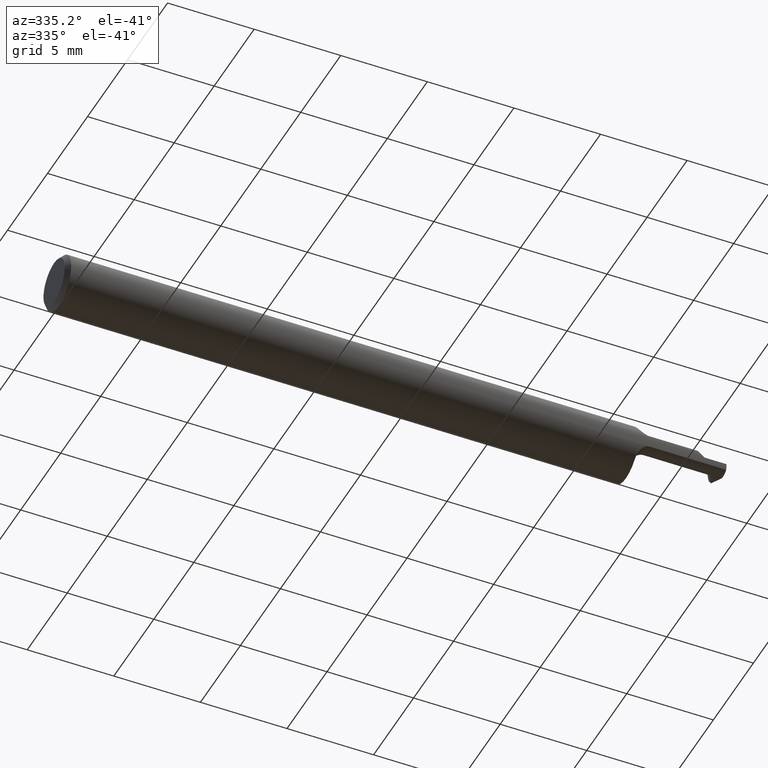
[diagram: clean part render]
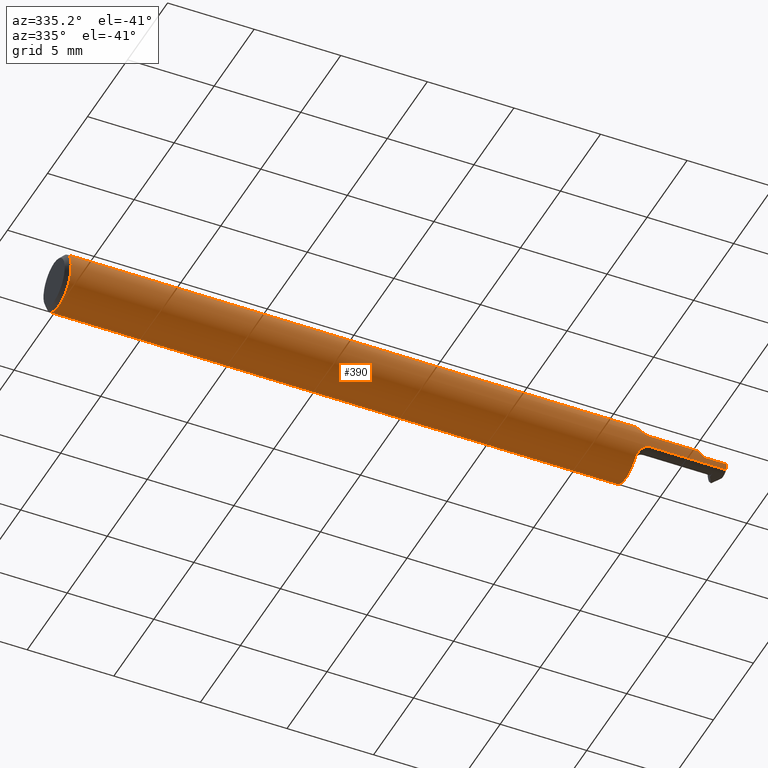
[diagram: same view with one face highlighted and labeled with its STEP entity id]
A machine part, auxiliary view. The second image highlights one B-rep face of the part: STEP entity #390.
In plain terms, the highlighted cylindrical surface (edge-blend (fillet) strip) has radius 1.5837 mm, axis along (-1, -0, -0).
Its self-contained STEP definition (entity closure, byte-faithful):
#1 = DIRECTION ( 'NONE',  ( -1.000000000000000000, -0.000000000000000000, -0.000000000000000000 ) ) ;
#2 = EDGE_CURVE ( 'NONE', #551, #29, #622, .T. ) ;
#7 = VERTEX_POINT ( 'NONE', #149 ) ;
#10 = ORIENTED_EDGE ( 'NONE', *, *, #399, .T. ) ;
#14 = B_SPLINE_CURVE_WITH_KNOTS ( 'NONE', 3,
 ( #517, #572, #69, #290, #482, #100, #709, #213 ),
 .UNSPECIFIED., .F., .F.,
 ( 4, 2, 2, 4 ),
 ( 4.183662842068042959E-06, 0.0006133011813381126186, 0.0009178599405861294185, 0.001222418699834146218 ),
 .UNSPECIFIED. ) ;
#17 = VECTOR ( 'NONE', #316, 39.37007874015748143 ) ;
#24 = EDGE_CURVE ( 'NONE', #7, #266, #655, .T. ) ;
#29 = VERTEX_POINT ( 'NONE', #436 ) ;
#33 = EDGE_CURVE ( 'NONE', #638, #306, #328, .T. ) ;
#34 = CARTESIAN_POINT ( 'NONE',  ( 1.324999999999999734, -0.06073604143947641809, -0.01409452979925905104 ) ) ;
#37 = CARTESIAN_POINT ( 'NONE',  ( 1.308379651799175258, -0.05768568243143071955, -0.02390912192702928513 ) ) ;
#38 = CARTESIAN_POINT ( 'NONE',  ( 0.01000000000000001582, 0.000000000000000000, 0.000000000000000000 ) ) ;
#39 = VECTOR ( 'NONE', #217, 39.37007874015748143 ) ;
#42 = DIRECTION ( 'NONE',  ( -1.000000000000000000, -0.000000000000000000, -0.000000000000000000 ) ) ;
#43 = EDGE_CURVE ( 'NONE', #362, #551, #375, .T. ) ;
#49 = VECTOR ( 'NONE', #503, 39.37007874015748143 ) ;
#69 = CARTESIAN_POINT ( 'NONE',  ( 1.302087078649324159, -0.05320835086854504292, 0.03322816149382799150 ) ) ;
#82 = EDGE_CURVE ( 'NONE', #266, #306, #95, .T. ) ;
#92 = CARTESIAN_POINT ( 'NONE',  ( 1.320918043451031920, -0.06073604143947645972, -0.01409452979925904237 ) ) ;
#95 = LINE ( 'NONE', #594, #542 ) ;
#100 = CARTESIAN_POINT ( 'NONE',  ( 1.317156662623708785, -0.06029909404253408489, 0.01606812257809505512 ) ) ;
#112 = VERTEX_POINT ( 'NONE', #539 ) ;
#114 = CARTESIAN_POINT ( 'NONE',  ( 2.249639673992810223E-32, -0.06234999999999999570, 1.836970198721039302E-16 ) ) ;
#130 = DIRECTION ( 'NONE',  ( -1.000000000000000000, -0.000000000000000000, -0.000000000000000000 ) ) ;
#139 = CARTESIAN_POINT ( 'NONE',  ( 1.300000000000000044, -0.03386738844375225543, 0.05234999999999997294 ) ) ;
#145 = DIRECTION ( 'NONE',  ( -1.000000000000000000, -0.000000000000000000, -0.000000000000000000 ) ) ;
#149 = CARTESIAN_POINT ( 'NONE',  ( 1.300000000000000044, -0.04274258451472189718, -0.04539376575039635875 ) ) ;
#165 = AXIS2_PLACEMENT_3D ( 'NONE', #263, #696, #700 ) ;
#166 = CARTESIAN_POINT ( 'NONE',  ( 1.500000000000000222, -0.06073604143947643197, -0.01409452979925878389 ) ) ;
#172 = ORIENTED_EDGE ( 'NONE', *, *, #342, .F. ) ;
#178 = CARTESIAN_POINT ( 'NONE',  ( 1.445250564478592015, -0.06235000000000000264, 0.004749435521408090083 ) ) ;
#187 = CARTESIAN_POINT ( 'NONE',  ( 0.000000000000000000, 0.000000000000000000, 0.000000000000000000 ) ) ;
#202 = CARTESIAN_POINT ( 'NONE',  ( 1.500000000000000222, 0.000000000000000000, 0.000000000000000000 ) ) ;
#211 = CARTESIAN_POINT ( 'NONE',  ( 0.000000000000000000, -0.03386738844375224849, 0.05234999999999997294 ) ) ;
#213 = CARTESIAN_POINT ( 'NONE',  ( 1.324999999999999734, -0.06073604143947641809, 0.01409452979925905104 ) ) ;
#215 = EDGE_CURVE ( 'NONE', #694, #112, #532, .T. ) ;
#217 = DIRECTION ( 'NONE',  ( 1.000000000000000000, 9.929577671863619690E-17, 0.000000000000000000 ) ) ;
#241 = ORIENTED_EDGE ( 'NONE', *, *, #445, .F. ) ;
#248 = AXIS2_PLACEMENT_3D ( 'NONE', #187, #130, #629 ) ;
#249 = VERTEX_POINT ( 'NONE', #715 ) ;
#253 = CARTESIAN_POINT ( 'NONE',  ( 1.310942042317410294, -0.05877762567767836482, -0.02095937121485504789 ) ) ;
#258 = DIRECTION ( 'NONE',  ( 1.000000000000000000, 0.000000000000000000, 0.000000000000000000 ) ) ;
#259 = EDGE_CURVE ( 'NONE', #112, #417, #327, .T. ) ;
#263 = CARTESIAN_POINT ( 'NONE',  ( 1.300000000000000044, 0.000000000000000000, 0.000000000000000000 ) ) ;
#266 = VERTEX_POINT ( 'NONE', #398 ) ;
#269 = EDGE_LOOP ( 'NONE', ( #172, #329, #525, #10, #382, #241, #528, #393, #586, #325, #534, #547, #389 ) ) ;
#274 = CARTESIAN_POINT ( 'NONE',  ( 1.398475710773593672, -0.06073604143947648748, -0.01409452979925883073 ) ) ;
#278 = CARTESIAN_POINT ( 'NONE',  ( 0.01000000000000001582, -0.03386738844375224849, 0.05234999999999997294 ) ) ;
#284 = AXIS2_PLACEMENT_3D ( 'NONE', #202, #145, #596 ) ;
#287 = CARTESIAN_POINT ( 'NONE',  ( 0.01000000000000001582, 0.03386738844375224849, 0.05234999999999997294 ) ) ;
#290 = CARTESIAN_POINT ( 'NONE',  ( 1.308393315188583150, -0.05769563112685622414, 0.02388861346910425842 ) ) ;
#295 = CARTESIAN_POINT ( 'NONE',  ( 1.450000000000000178, -0.06235000000000005121, 6.123233995736799470E-18 ) ) ;
#306 = VERTEX_POINT ( 'NONE', #287 ) ;
#314 = EDGE_CURVE ( 'NONE', #362, #638, #702, .T. ) ;
#315 = CARTESIAN_POINT ( 'NONE',  ( 1.299999999999999600, -0.04862953753773300442, -0.03985063481687043524 ) ) ;
#316 = DIRECTION ( 'NONE',  ( 1.000000000000000000, 0.000000000000000000, 0.000000000000000000 ) ) ;
#323 = CARTESIAN_POINT ( 'NONE',  ( 1.398475710773593672, -0.06073604143947648748, 0.01409452979925883073 ) ) ;
#325 = ORIENTED_EDGE ( 'NONE', *, *, #33, .T. ) ;
#327 = LINE ( 'NONE', #114, #666 ) ;
#328 = CIRCLE ( 'NONE', #601, 0.06235000000000000264 ) ;
#329 = ORIENTED_EDGE ( 'NONE', *, *, #215, .T. ) ;
#342 = EDGE_CURVE ( 'NONE', #694, #350, #563, .T. ) ;
#344 = VERTEX_POINT ( 'NONE', #717 ) ;
#349 = CARTESIAN_POINT ( 'NONE',  ( 1.435905470200740996, -0.06073604143947647360, 0.01409452979925886716 ) ) ;
#350 = VERTEX_POINT ( 'NONE', #664 ) ;
#362 = VERTEX_POINT ( 'NONE', #278 ) ;
#373 = DIRECTION ( 'NONE',  ( 1.000000000000000000, 9.929577671863619690E-17, 0.000000000000000000 ) ) ;
#375 = LINE ( 'NONE', #211, #17 ) ;
#382 = ORIENTED_EDGE ( 'NONE', *, *, #578, .F. ) ;
#384 = DIRECTION ( 'NONE',  ( 0.000000000000000000, 0.000000000000000000, -1.000000000000000000 ) ) ;
#389 = ORIENTED_EDGE ( 'NONE', *, *, #520, .F. ) ;
#390 = ADVANCED_FACE ( 'NONE', ( #639 ), #530, .T. ) ;
#393 = ORIENTED_EDGE ( 'NONE', *, *, #43, .F. ) ;
#398 = CARTESIAN_POINT ( 'NONE',  ( 1.300000000000000044, 0.03386738844375224849, 0.05234999999999997294 ) ) ;
#399 = EDGE_CURVE ( 'NONE', #417, #344, #414, .T. ) ;
#405 = CARTESIAN_POINT ( 'NONE',  ( 1.440531964389071051, -0.06180967512810751213, 0.009468035610929069132 ) ) ;
#414 =( BOUNDED_CURVE ( )  B_SPLINE_CURVE ( 3, ( #295, #178, #405, #349 ),
 .UNSPECIFIED., .F., .T. ) 
 B_SPLINE_CURVE_WITH_KNOTS ( ( 4, 4 ),
 ( 4.712388980384689674, 4.940414924607591907 ),
 .UNSPECIFIED. ) 
 CURVE ( )  GEOMETRIC_REPRESENTATION_ITEM ( )  RATIONAL_B_SPLINE_CURVE ( ( 1.000000000000000000, 0.9956717057219213185, 0.9956717057219213185, 1.000000000000000000 ) ) 
 REPRESENTATION_ITEM ( '' )  );
#417 = VERTEX_POINT ( 'NONE', #678 ) ;
#429 = CARTESIAN_POINT ( 'NONE',  ( 1.300000000000000044, 0.000000000000000000, 0.000000000000000000 ) ) ;
#436 = CARTESIAN_POINT ( 'NONE',  ( 1.300000000000000044, -0.04274258451472189718, 0.04539376575039635875 ) ) ;
#437 = AXIS2_PLACEMENT_3D ( 'NONE', #429, #373, #650 ) ;
#443 = CARTESIAN_POINT ( 'NONE',  ( 0.01000000000000001582, 0.000000000000000000, -0.06235000000000000264 ) ) ;
#445 = EDGE_CURVE ( 'NONE', #29, #249, #14, .T. ) ;
#474 = AXIS2_PLACEMENT_3D ( 'NONE', #513, #608, #384 ) ;
#482 = CARTESIAN_POINT ( 'NONE',  ( 1.310909952257189204, -0.05876722237226792572, 0.02098997094289251075 ) ) ;
#495 = LINE ( 'NONE', #323, #39 ) ;
#503 = DIRECTION ( 'NONE',  ( -1.000000000000000000, -9.929577671863619690E-17, -0.000000000000000000 ) ) ;
#513 = CARTESIAN_POINT ( 'NONE',  ( 0.01000000000000001582, 0.000000000000000000, 0.000000000000000000 ) ) ;
#517 = CARTESIAN_POINT ( 'NONE',  ( 1.300000000000000044, -0.04274258451472189718, 0.04539376575039635875 ) ) ;
#520 = EDGE_CURVE ( 'NONE', #350, #7, #548, .T. ) ;
#525 = ORIENTED_EDGE ( 'NONE', *, *, #259, .T. ) ;
#528 = ORIENTED_EDGE ( 'NONE', *, *, #2, .F. ) ;
#530 = CYLINDRICAL_SURFACE ( 'NONE', #248, 0.06235000000000000264 ) ;
#532 = CIRCLE ( 'NONE', #284, 0.06235000000000000264 ) ;
#534 = ORIENTED_EDGE ( 'NONE', *, *, #82, .F. ) ;
#539 = CARTESIAN_POINT ( 'NONE',  ( 1.500000000000000222, -0.06235000000000000264, 0.000000000000000000 ) ) ;
#542 = VECTOR ( 'NONE', #42, 39.37007874015748143 ) ;
#547 = ORIENTED_EDGE ( 'NONE', *, *, #24, .F. ) ;
#548 = B_SPLINE_CURVE_WITH_KNOTS ( 'NONE', 3,
 ( #34, #92, #695, #253, #37, #699, #315, #590 ),
 .UNSPECIFIED., .F., .F.,
 ( 4, 2, 2, 4 ),
 ( 1.967541529506627283E-07, 0.0003062111729972479554, 0.0006122255918415451604, 0.001224254429530150737 ),
 .UNSPECIFIED. ) ;
#551 = VERTEX_POINT ( 'NONE', #139 ) ;
#563 = LINE ( 'NONE', #274, #49 ) ;
#572 = CARTESIAN_POINT ( 'NONE',  ( 1.300000000000000044, -0.04863025920668308244, 0.03984995529633322126 ) ) ;
#578 = EDGE_CURVE ( 'NONE', #249, #344, #495, .T. ) ;
#586 = ORIENTED_EDGE ( 'NONE', *, *, #314, .T. ) ;
#590 = CARTESIAN_POINT ( 'NONE',  ( 1.300000000000000044, -0.04274258451472189718, -0.04539376575039635875 ) ) ;
#594 = CARTESIAN_POINT ( 'NONE',  ( 0.000000000000000000, 0.03386738844375224849, 0.05234999999999997294 ) ) ;
#596 = DIRECTION ( 'NONE',  ( 0.000000000000000000, 0.000000000000000000, 1.000000000000000000 ) ) ;
#601 = AXIS2_PLACEMENT_3D ( 'NONE', #38, #258, #707 ) ;
#608 = DIRECTION ( 'NONE',  ( 1.000000000000000000, 0.000000000000000000, 0.000000000000000000 ) ) ;
#622 = CIRCLE ( 'NONE', #437, 0.06235000000000000264 ) ;
#629 = DIRECTION ( 'NONE',  ( 0.000000000000000000, 0.000000000000000000, 1.000000000000000000 ) ) ;
#638 = VERTEX_POINT ( 'NONE', #443 ) ;
#639 = FACE_OUTER_BOUND ( 'NONE', #269, .T. ) ;
#650 = DIRECTION ( 'NONE',  ( 0.000000000000000000, 1.000000000000000000, 0.000000000000000000 ) ) ;
#655 = CIRCLE ( 'NONE', #165, 0.06235000000000000264 ) ;
#664 = CARTESIAN_POINT ( 'NONE',  ( 1.324999999999999734, -0.06073604143947641809, -0.01409452979925905104 ) ) ;
#666 = VECTOR ( 'NONE', #1, 39.37007874015748143 ) ;
#678 = CARTESIAN_POINT ( 'NONE',  ( 1.450000000000000178, -0.06235000000000005121, 6.123233995736799470E-18 ) ) ;
#694 = VERTEX_POINT ( 'NONE', #166 ) ;
#695 = CARTESIAN_POINT ( 'NONE',  ( 1.317174290130400216, -0.06030086259926992209, -0.01605959189429598255 ) ) ;
#696 = DIRECTION ( 'NONE',  ( 1.000000000000000000, 9.929577671863619690E-17, 0.000000000000000000 ) ) ;
#699 = CARTESIAN_POINT ( 'NONE',  ( 1.302117253329443169, -0.05323027456427567583, -0.03318292701701430064 ) ) ;
#700 = DIRECTION ( 'NONE',  ( 0.000000000000000000, 1.000000000000000000, 0.000000000000000000 ) ) ;
#702 = CIRCLE ( 'NONE', #474, 0.06235000000000000264 ) ;
#707 = DIRECTION ( 'NONE',  ( 0.000000000000000000, 0.000000000000000000, -1.000000000000000000 ) ) ;
#709 = CARTESIAN_POINT ( 'NONE',  ( 1.320918107686049003, -0.06073604143947836792, 0.01409452979925098284 ) ) ;
#715 = CARTESIAN_POINT ( 'NONE',  ( 1.324999999999999734, -0.06073604143947641809, 0.01409452979925905104 ) ) ;
#717 = CARTESIAN_POINT ( 'NONE',  ( 1.435905470200740996, -0.06073604143947647360, 0.01409452979925886716 ) ) ;